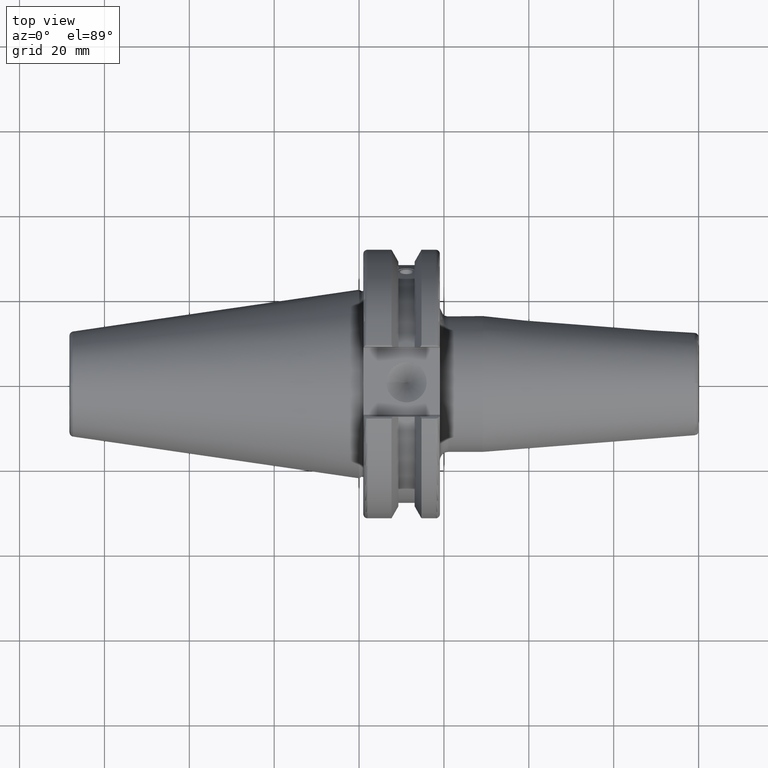
[diagram: clean part render]
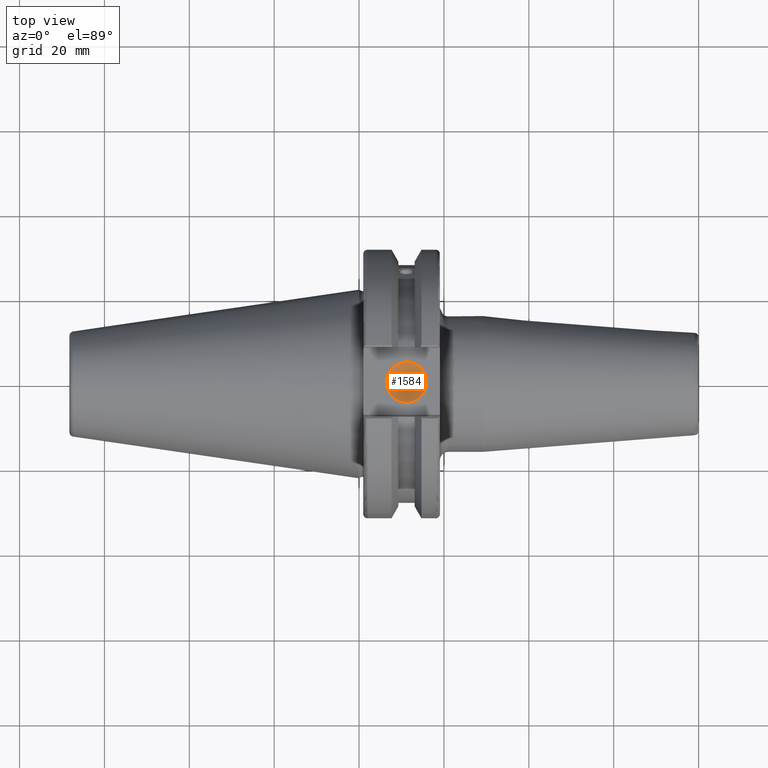
[diagram: same view with one face highlighted and labeled with its STEP entity id]
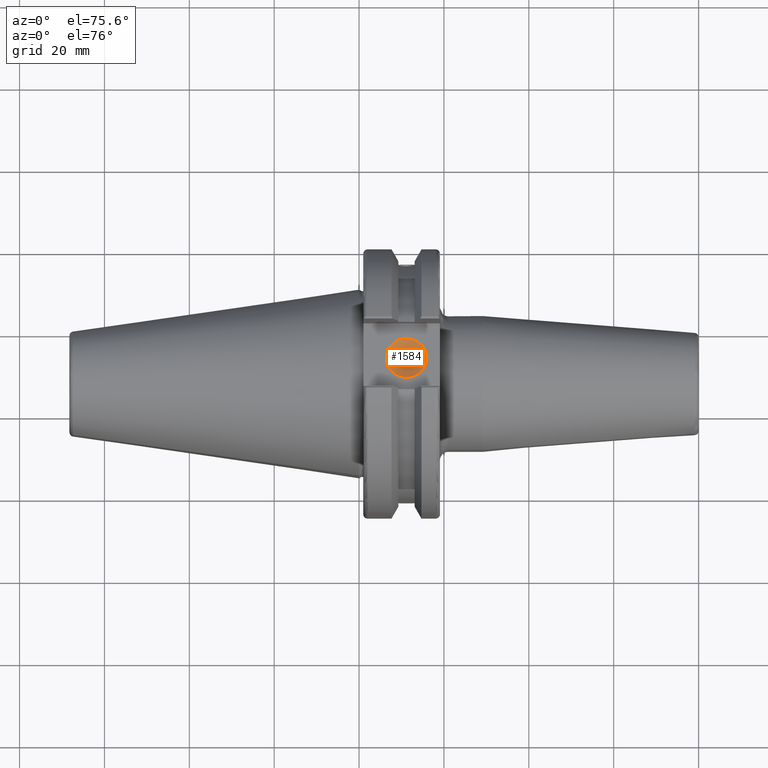
[diagram: same view with one face highlighted and labeled with its STEP entity id]
A machine part, top view. The second image highlights one B-rep face of the part: STEP entity #1584.
A second angle (auxiliary view) of the same face is appended — the face is thin or edge-on in the first view.
In plain terms, the highlighted conical surface has half-angle 59 deg.
Its self-contained STEP definition (entity closure, byte-faithful):
#254=LINE('',#3015,#350);
#350=VECTOR('',#2198,2.38125);
#364=CONICAL_SURFACE('',#1773,2.38125,1.02974425867665);
#440=FACE_OUTER_BOUND('',#542,.T.);
#542=EDGE_LOOP('',(#1422,#1423,#1424));
#623=CIRCLE('',#1774,4.7625);
#786=VERTEX_POINT('',#3012);
#787=VERTEX_POINT('',#3014);
#1010=EDGE_CURVE('',#786,#786,#623,.T.);
#1011=EDGE_CURVE('',#786,#787,#254,.T.);
#1422=ORIENTED_EDGE('',*,*,#1010,.T.);
#1423=ORIENTED_EDGE('',*,*,#1011,.T.);
#1424=ORIENTED_EDGE('',*,*,#1011,.F.);
#1584=ADVANCED_FACE('',(#440),#364,.F.);
#1773=AXIS2_PLACEMENT_3D('',#3011,#2194,#2195);
#1774=AXIS2_PLACEMENT_3D('',#3013,#2196,#2197);
#2194=DIRECTION('center_axis',(0.,0.,1.));
#2195=DIRECTION('ref_axis',(1.,0.,0.));
#2196=DIRECTION('center_axis',(0.,0.,1.));
#2197=DIRECTION('ref_axis',(1.,0.,0.));
#2198=DIRECTION('',(0.857167300702112,1.04972719113862E-16,-0.515038074910054));
#3011=CARTESIAN_POINT('Origin',(11.176,0.,23.1692006509406));
#3012=CARTESIAN_POINT('',(6.4135,-5.83238038093927E-16,24.6));
#3013=CARTESIAN_POINT('Origin',(11.176,0.,24.6));
#3014=CARTESIAN_POINT('',(11.176,0.,21.7384013018812));
#3015=CARTESIAN_POINT('',(8.79475,-2.91619019046964E-16,23.1692006509406));